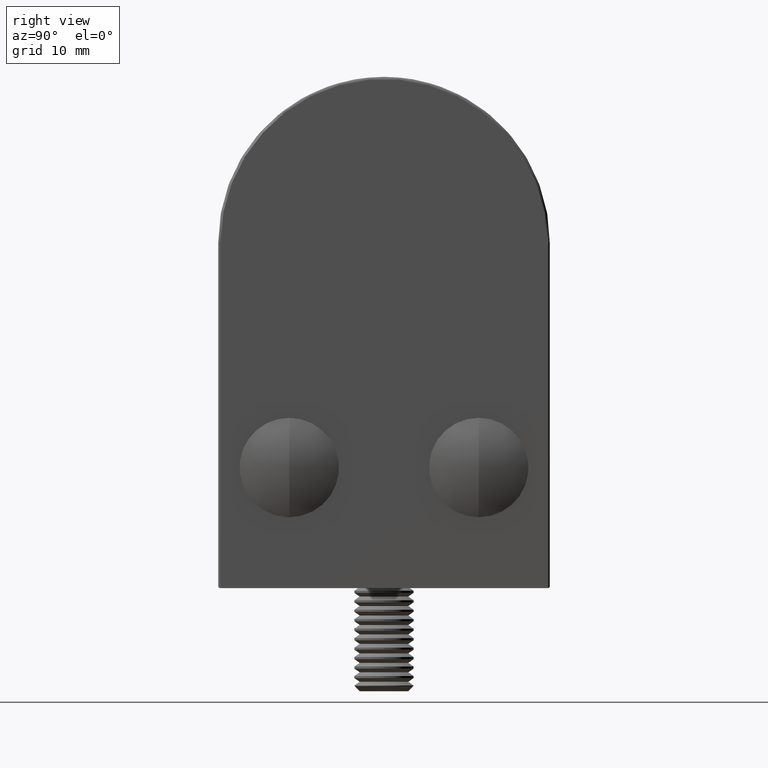
[diagram: clean part render]
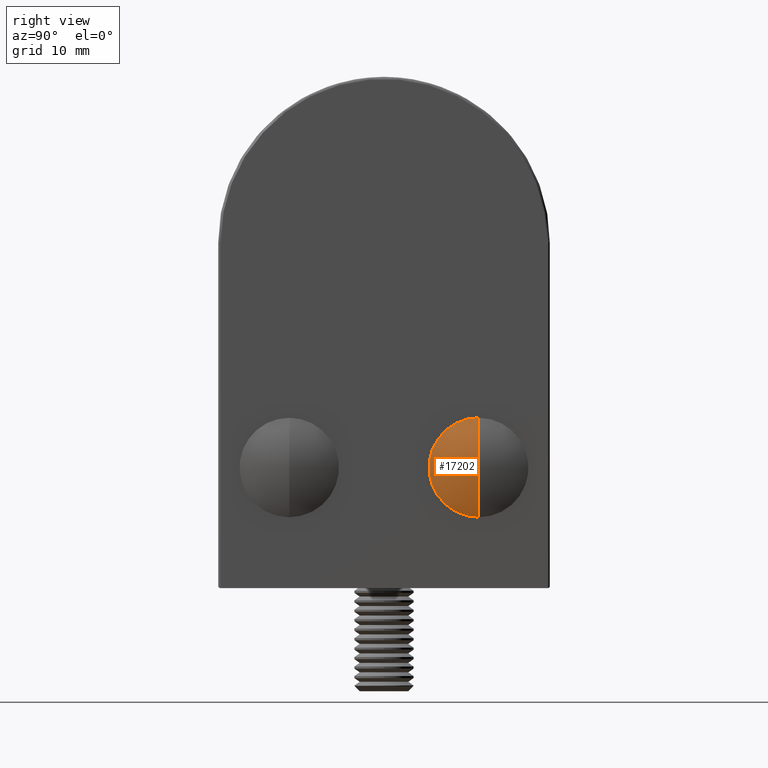
[diagram: same view with one face highlighted and labeled with its STEP entity id]
A machine part, right view. The second image highlights one B-rep face of the part: STEP entity #17202.
In plain terms, the highlighted spherical surface has radius 9.32 mm.
Its self-contained STEP definition (entity closure, byte-faithful):
#2216 = VERTEX_POINT ( 'NONE', #21234 ) ;
#9709 = CARTESIAN_POINT ( 'NONE',  ( 5.706854084026663700E-016, 1.000000000000000900, 0.0000000000000000000 ) ) ;
#10307 = AXIS2_PLACEMENT_3D ( 'NONE', #47167, #47367, #29593 ) ;
#10479 = DIRECTION ( 'NONE',  ( 0.0000000000000000000, 0.0000000000000000000, -1.000000000000000000 ) ) ;
#11514 = VERTEX_POINT ( 'NONE', #9709 ) ;
#12378 = ORIENTED_EDGE ( 'NONE', *, *, #41827, .T. ) ;
#15210 = EDGE_CURVE ( 'NONE', #2216, #27792, #19144, .T. ) ;
#17202 = ADVANCED_FACE ( 'NONE', ( #42350 ), #40214, .T. ) ;
#19144 = CIRCLE ( 'NONE', #22133, 4.200000000000001100 ) ;
#19529 = DIRECTION ( 'NONE',  ( -0.0000000000000000000, -1.000000000000000000, -0.0000000000000000000 ) ) ;
#19892 = ORIENTED_EDGE ( 'NONE', *, *, #32497, .F. ) ;
#20353 = ORIENTED_EDGE ( 'NONE', *, *, #15210, .F. ) ;
#20457 = DIRECTION ( 'NONE',  ( 0.0000000000000000000, 0.0000000000000000000, -1.000000000000000000 ) ) ;
#21234 = CARTESIAN_POINT ( 'NONE',  ( 4.200000000000000200, 8.673617379884035500E-016, 0.0000000000000000000 ) ) ;
#22133 = AXIS2_PLACEMENT_3D ( 'NONE', #46767, #19529, #10479 ) ;
#27792 = VERTEX_POINT ( 'NONE', #36252 ) ;
#29593 = DIRECTION ( 'NONE',  ( 1.000000000000000000, 0.0000000000000000000, -1.224646799147353500E-016 ) ) ;
#32497 = EDGE_CURVE ( 'NONE', #11514, #2216, #55764, .T. ) ;
#33767 = DIRECTION ( 'NONE',  ( 0.0000000000000000000, 0.0000000000000000000, 1.000000000000000000 ) ) ;
#36252 = CARTESIAN_POINT ( 'NONE',  ( -4.200000000000000200, 8.673617379884035500E-016, 5.143516556418884900E-016 ) ) ;
#36921 = AXIS2_PLACEMENT_3D ( 'NONE', #47520, #20457, #52097 ) ;
#40214 = SPHERICAL_SURFACE ( 'NONE', #42157, 9.319999999999995000 ) ;
#41827 = EDGE_CURVE ( 'NONE', #11514, #27792, #44172, .T. ) ;
#42157 = AXIS2_PLACEMENT_3D ( 'NONE', #43227, #33767, #42445 ) ;
#42350 = FACE_OUTER_BOUND ( 'NONE', #47341, .T. ) ;
#42445 = DIRECTION ( 'NONE',  ( 1.000000000000000000, 0.0000000000000000000, 0.0000000000000000000 ) ) ;
#43227 = CARTESIAN_POINT ( 'NONE',  ( 0.0000000000000000000, -8.319999999999993200, 0.0000000000000000000 ) ) ;
#44172 = CIRCLE ( 'NONE', #10307, 9.319999999999995000 ) ;
#46767 = CARTESIAN_POINT ( 'NONE',  ( 0.0000000000000000000, 0.0000000000000000000, 0.0000000000000000000 ) ) ;
#47167 = CARTESIAN_POINT ( 'NONE',  ( 0.0000000000000000000, -8.319999999999993200, 0.0000000000000000000 ) ) ;
#47341 = EDGE_LOOP ( 'NONE', ( #19892, #12378, #20353 ) ) ;
#47367 = DIRECTION ( 'NONE',  ( 1.224646799147353200E-016, -0.0000000000000000000, 1.000000000000000000 ) ) ;
#47520 = CARTESIAN_POINT ( 'NONE',  ( 0.0000000000000000000, -8.319999999999993200, 0.0000000000000000000 ) ) ;
#52097 = DIRECTION ( 'NONE',  ( -1.000000000000000000, 0.0000000000000000000, 0.0000000000000000000 ) ) ;
#55764 = CIRCLE ( 'NONE', #36921, 9.319999999999995000 ) ;